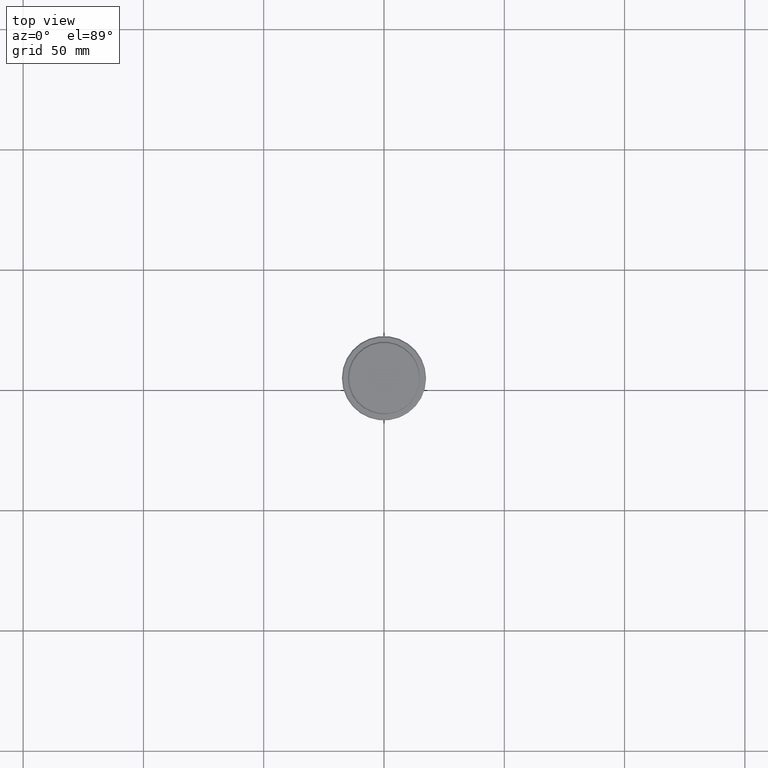
[diagram: clean part render]
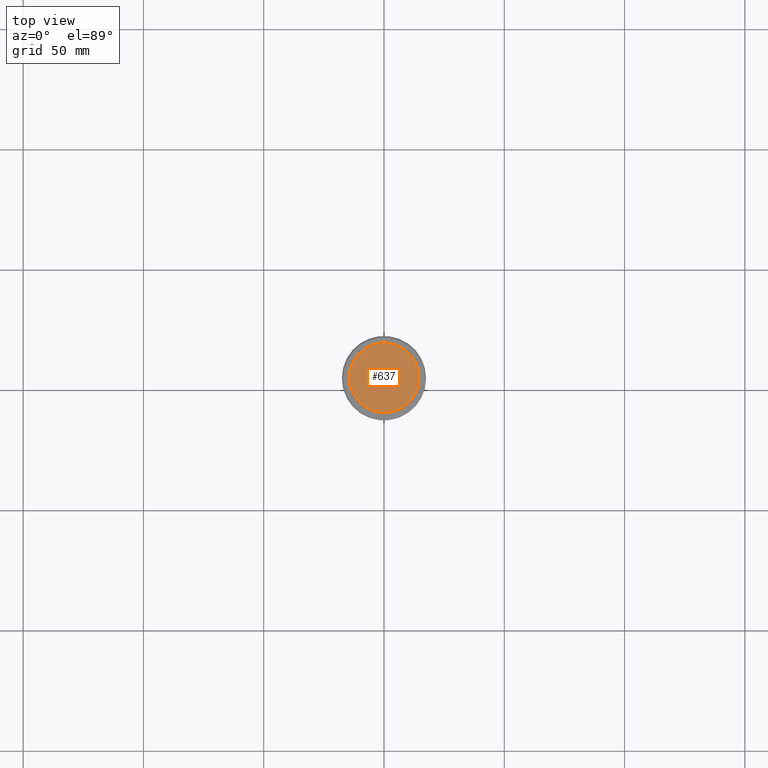
[diagram: same view with one face highlighted and labeled with its STEP entity id]
A machine part, top view. The second image highlights one B-rep face of the part: STEP entity #637.
In plain terms, the highlighted planar face has unit normal (0, -0, 1).
Its self-contained STEP definition (entity closure, byte-faithful):
#150 = DIRECTION ( 'NONE',  ( -0.000000000000000000, -0.000000000000000000, 1.000000000000000000 ) ) ;
#165 = DIRECTION ( 'NONE',  ( 1.000000000000000000, 0.000000000000000000, 0.000000000000000000 ) ) ;
#329 = EDGE_CURVE ( 'NONE', #1317, #1176, #604, .T. ) ;
#467 = AXIS2_PLACEMENT_3D ( 'NONE', #537, #1106, #973 ) ;
#537 = CARTESIAN_POINT ( 'NONE',  ( 0.000000000000000000, 0.000000000000000000, 0.000000000000000000 ) ) ;
#604 = CIRCLE ( 'NONE', #992, 14.49999999999998401 ) ;
#637 = ADVANCED_FACE ( 'NONE', ( #871 ), #1099, .T. ) ;
#668 = ORIENTED_EDGE ( 'NONE', *, *, #777, .T. ) ;
#672 = EDGE_LOOP ( 'NONE', ( #668, #1188 ) ) ;
#696 = CARTESIAN_POINT ( 'NONE',  ( 0.000000000000000000, 0.000000000000000000, 0.000000000000000000 ) ) ;
#706 = DIRECTION ( 'NONE',  ( -0.000000000000000000, -0.000000000000000000, 1.000000000000000000 ) ) ;
#712 = CARTESIAN_POINT ( 'NONE',  ( -14.49999999999998401, 0.000000000000000000, 0.000000000000000000 ) ) ;
#730 = AXIS2_PLACEMENT_3D ( 'NONE', #696, #706, #165 ) ;
#777 = EDGE_CURVE ( 'NONE', #1176, #1317, #1335, .T. ) ;
#806 = CARTESIAN_POINT ( 'NONE',  ( 0.000000000000000000, 0.000000000000000000, 0.000000000000000000 ) ) ;
#871 = FACE_OUTER_BOUND ( 'NONE', #672, .T. ) ;
#940 = CARTESIAN_POINT ( 'NONE',  ( 14.49999999999998401, 1.806354028742345013E-15, 0.000000000000000000 ) ) ;
#973 = DIRECTION ( 'NONE',  ( 1.000000000000000000, 0.000000000000000000, 0.000000000000000000 ) ) ;
#992 = AXIS2_PLACEMENT_3D ( 'NONE', #806, #150, #1124 ) ;
#1099 = PLANE ( 'NONE',  #467 ) ;
#1106 = DIRECTION ( 'NONE',  ( 0.000000000000000000, -0.000000000000000000, 1.000000000000000000 ) ) ;
#1124 = DIRECTION ( 'NONE',  ( 1.000000000000000000, 0.000000000000000000, 0.000000000000000000 ) ) ;
#1176 = VERTEX_POINT ( 'NONE', #712 ) ;
#1188 = ORIENTED_EDGE ( 'NONE', *, *, #329, .T. ) ;
#1317 = VERTEX_POINT ( 'NONE', #940 ) ;
#1335 = CIRCLE ( 'NONE', #730, 14.49999999999998401 ) ;